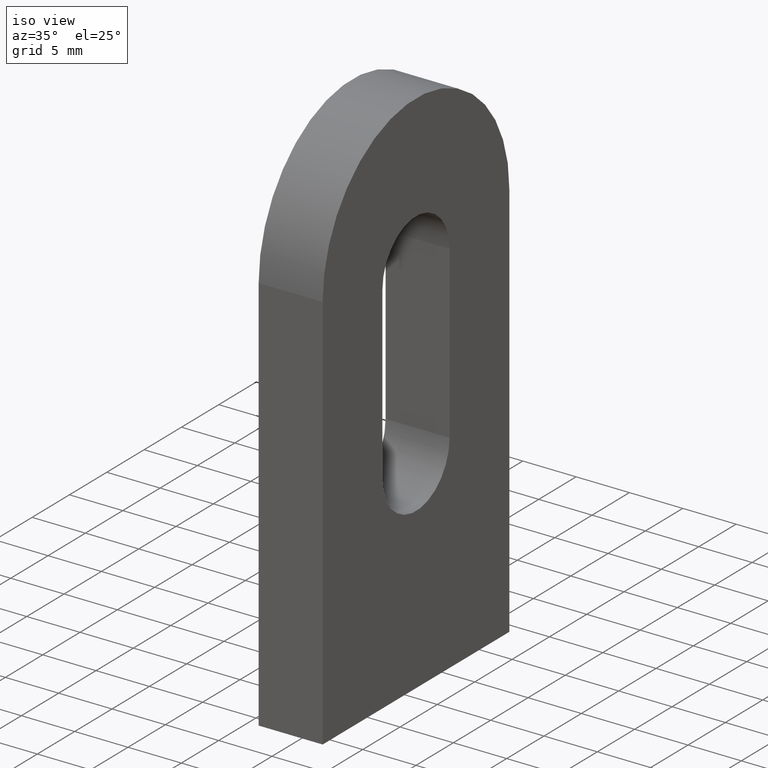
[diagram: clean part render]
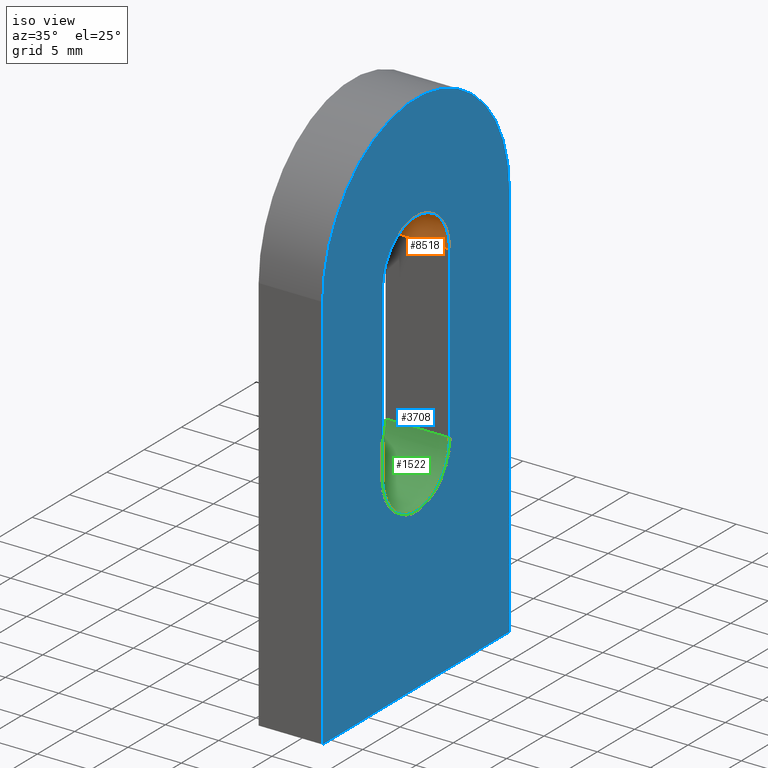
[diagram: same view with three faces highlighted in distinct colors, each labeled with its STEP entity id]
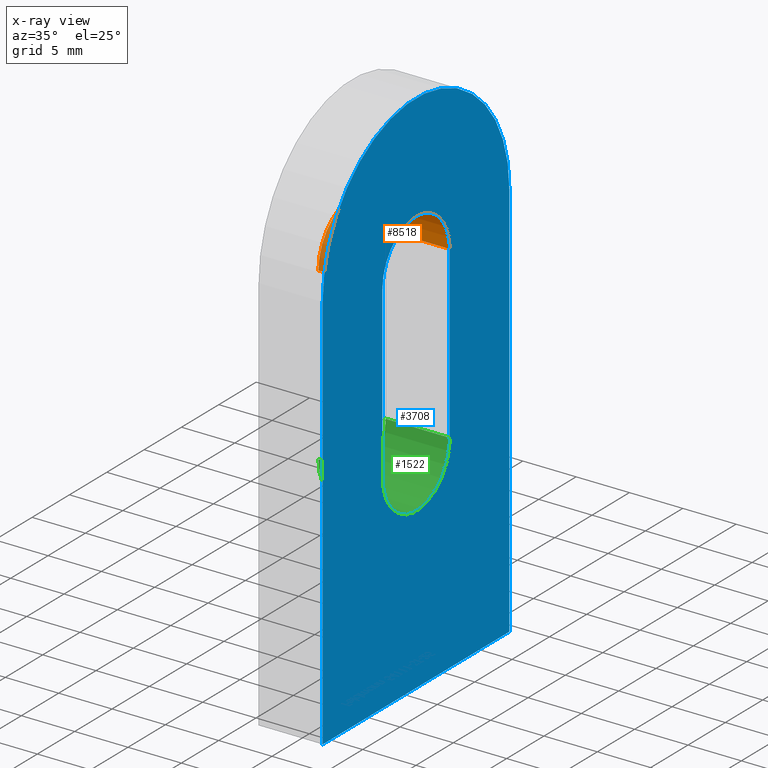
[diagram: x-ray of the same camera — body ghosted, the three highlighted faces saturated]
A machine part, iso view with three faces highlighted in distinct colors.
The next image is the same camera in x-ray (body ghosted, the three faces saturated) — at least one of them is partly hidden behind the body in this view.
Their STEP definitions:

[orange] entity #8518 — the highlighted cylindrical surface (partial cylindrical patch) has radius 4.5 mm, axis along (1, -0, -0).
#16 = ORIENTED_EDGE ( 'NONE', *, *, #8399, .T. ) ;
#138 = VECTOR ( 'NONE', #3135, 1000.000000000000000 ) ;
#873 = CIRCLE ( 'NONE', #11411, 4.500000000000003553 ) ;
#1054 = CARTESIAN_POINT ( 'NONE',  ( 3.000000000000000000, 4.500000000000002665, 35.50000000000000000 ) ) ;
#1369 = ORIENTED_EDGE ( 'NONE', *, *, #11287, .F. ) ;
#1378 = CARTESIAN_POINT ( 'NONE',  ( -3.000000000000000000, -4.500000000000002665, 35.50000000000000000 ) ) ;
#1459 = ORIENTED_EDGE ( 'NONE', *, *, #8643, .F. ) ;
#1526 = VECTOR ( 'NONE', #6486, 1000.000000000000000 ) ;
#1928 = CARTESIAN_POINT ( 'NONE',  ( -3.000000000000000000, -4.500000000000002665, 35.50000000000000000 ) ) ;
#2018 = CARTESIAN_POINT ( 'NONE',  ( 3.000000000000000000, -4.500000000000002665, 35.50000000000000000 ) ) ;
#2147 = AXIS2_PLACEMENT_3D ( 'NONE', #8392, #7545, #11240 ) ;
#2381 = LINE ( 'NONE', #7337, #1526 ) ;
#2628 = CARTESIAN_POINT ( 'NONE',  ( -3.000000000000000000, 4.500000000000002665, 35.50000000000000000 ) ) ;
#2711 = VERTEX_POINT ( 'NONE', #2628 ) ;
#3135 = DIRECTION ( 'NONE',  ( 1.000000000000000000, -0.000000000000000000, -0.000000000000000000 ) ) ;
#3961 = ORIENTED_EDGE ( 'NONE', *, *, #10543, .T. ) ;
#4423 = CARTESIAN_POINT ( 'NONE',  ( -3.000000000000000000, -1.776356839400250070E-15, 35.50000000000000000 ) ) ;
#5454 = CIRCLE ( 'NONE', #2147, 4.500000000000003553 ) ;
#6486 = DIRECTION ( 'NONE',  ( 1.000000000000000000, -0.000000000000000000, -0.000000000000000000 ) ) ;
#7337 = CARTESIAN_POINT ( 'NONE',  ( -3.000000000000000000, 4.500000000000002665, 35.50000000000000000 ) ) ;
#7494 = CARTESIAN_POINT ( 'NONE',  ( -3.000000000000000000, -1.776356839400250070E-15, 35.50000000000000000 ) ) ;
#7545 = DIRECTION ( 'NONE',  ( 1.000000000000000000, 0.000000000000000000, 0.000000000000000000 ) ) ;
#7874 = EDGE_LOOP ( 'NONE', ( #3961, #1459, #1369, #16 ) ) ;
#8392 = CARTESIAN_POINT ( 'NONE',  ( 3.000000000000000000, -1.776356839400250070E-15, 35.50000000000000000 ) ) ;
#8395 = DIRECTION ( 'NONE',  ( 0.000000000000000000, 0.000000000000000000, -1.000000000000000000 ) ) ;
#8399 = EDGE_CURVE ( 'NONE', #2711, #8398, #2381, .T. ) ;
#8398 = VERTEX_POINT ( 'NONE', #1054 ) ;
#8512 = VERTEX_POINT ( 'NONE', #2018 ) ;
#8518 = ADVANCED_FACE ( 'NONE', ( #9525 ), #11226, .F. ) ;
#8643 = EDGE_CURVE ( 'NONE', #9087, #8512, #9251, .T. ) ;
#9087 = VERTEX_POINT ( 'NONE', #1928 ) ;
#9251 = LINE ( 'NONE', #1378, #138 ) ;
#9525 = FACE_OUTER_BOUND ( 'NONE', #7874, .T. ) ;
#9779 = DIRECTION ( 'NONE',  ( 1.000000000000000000, 0.000000000000000000, 0.000000000000000000 ) ) ;
#10543 = EDGE_CURVE ( 'NONE', #8398, #8512, #5454, .T. ) ;
#10753 = DIRECTION ( 'NONE',  ( 0.000000000000000000, 0.000000000000000000, -1.000000000000000000 ) ) ;
#10997 = DIRECTION ( 'NONE',  ( 1.000000000000000000, -0.000000000000000000, -0.000000000000000000 ) ) ;
#11226 = CYLINDRICAL_SURFACE ( 'NONE', #11251, 4.500000000000003553 ) ;
#11240 = DIRECTION ( 'NONE',  ( 0.000000000000000000, 0.000000000000000000, -1.000000000000000000 ) ) ;
#11251 = AXIS2_PLACEMENT_3D ( 'NONE', #7494, #10997, #8395 ) ;
#11287 = EDGE_CURVE ( 'NONE', #2711, #9087, #873, .T. ) ;
#11411 = AXIS2_PLACEMENT_3D ( 'NONE', #4423, #9779, #10753 ) ;

[blue] entity #3708 — the highlighted planar face has unit normal (-1, -0, 0).
#506 = CARTESIAN_POINT ( 'NONE',  ( 3.000000000000000000, 0.000000000000000000, 37.50000000000000000 ) ) ;
#594 = LINE ( 'NONE', #7481, #8027 ) ;
#668 = CARTESIAN_POINT ( 'NONE',  ( 3.000000000000000000, -12.50000000000000000, -3.367778697655221307E-15 ) ) ;
#1054 = CARTESIAN_POINT ( 'NONE',  ( 3.000000000000000000, 4.500000000000002665, 35.50000000000000000 ) ) ;
#1257 = CARTESIAN_POINT ( 'NONE',  ( 3.000000000000000000, 12.50000000000000000, -3.367778697655221307E-15 ) ) ;
#1300 = AXIS2_PLACEMENT_3D ( 'NONE', #9878, #4507, #9914 ) ;
#1805 = ORIENTED_EDGE ( 'NONE', *, *, #1889, .F. ) ;
#1889 = EDGE_CURVE ( 'NONE', #9092, #6148, #10325, .T. ) ;
#1969 = CIRCLE ( 'NONE', #8506, 4.500000000000002665 ) ;
#2018 = CARTESIAN_POINT ( 'NONE',  ( 3.000000000000000000, -4.500000000000002665, 35.50000000000000000 ) ) ;
#2147 = AXIS2_PLACEMENT_3D ( 'NONE', #8392, #7545, #11240 ) ;
#2187 = EDGE_CURVE ( 'NONE', #6148, #8131, #10466, .T. ) ;
#2215 = ORIENTED_EDGE ( 'NONE', *, *, #10543, .F. ) ;
#2261 = CARTESIAN_POINT ( 'NONE',  ( 3.000000000000000000, 12.50000000000000178, 37.50000000000000000 ) ) ;
#2604 = ORIENTED_EDGE ( 'NONE', *, *, #7040, .F. ) ;
#2831 = VECTOR ( 'NONE', #10103, 1000.000000000000000 ) ;
#3533 = LINE ( 'NONE', #1257, #2831 ) ;
#3617 = PLANE ( 'NONE',  #1300 ) ;
#3708 = ADVANCED_FACE ( 'NONE', ( #9577, #10005 ), #3617, .F. ) ;
#3719 = CARTESIAN_POINT ( 'NONE',  ( 3.000000000000000000, -4.500000000000001776, 19.49999999999999645 ) ) ;
#3771 = DIRECTION ( 'NONE',  ( 0.000000000000000000, -4.625929269271485791E-17, -1.000000000000000000 ) ) ;
#3882 = CARTESIAN_POINT ( 'NONE',  ( 3.000000000000000000, 4.500000000000004441, 19.49999999999999645 ) ) ;
#4186 = ORIENTED_EDGE ( 'NONE', *, *, #11205, .F. ) ;
#4320 = DIRECTION ( 'NONE',  ( 0.000000000000000000, -4.625929269271485791E-17, 1.000000000000000000 ) ) ;
#4403 = VERTEX_POINT ( 'NONE', #3719 ) ;
#4422 = VECTOR ( 'NONE', #4320, 1000.000000000000000 ) ;
#4507 = DIRECTION ( 'NONE',  ( -1.000000000000000000, -0.000000000000000000, 0.000000000000000000 ) ) ;
#4762 = ORIENTED_EDGE ( 'NONE', *, *, #7246, .F. ) ;
#4881 = DIRECTION ( 'NONE',  ( 0.000000000000000000, 1.626303258728256651E-16, -1.000000000000000000 ) ) ;
#4901 = VERTEX_POINT ( 'NONE', #3882 ) ;
#5053 = DIRECTION ( 'NONE',  ( 0.000000000000000000, 0.000000000000000000, 1.000000000000000000 ) ) ;
#5363 = AXIS2_PLACEMENT_3D ( 'NONE', #506, #8616, #5053 ) ;
#5454 = CIRCLE ( 'NONE', #2147, 4.500000000000003553 ) ;
#5496 = EDGE_CURVE ( 'NONE', #4901, #8398, #594, .T. ) ;
#6148 = VERTEX_POINT ( 'NONE', #10172 ) ;
#6358 = CARTESIAN_POINT ( 'NONE',  ( 3.000000000000000000, -4.500000000000002665, 35.50000000000000000 ) ) ;
#6832 = CARTESIAN_POINT ( 'NONE',  ( 3.000000000000000000, 7.966394000823684906E-16, 19.49999999999999645 ) ) ;
#7040 = EDGE_CURVE ( 'NONE', #7567, #9092, #3533, .T. ) ;
#7127 = EDGE_LOOP ( 'NONE', ( #4762, #2215, #10181, #7195 ) ) ;
#7195 = ORIENTED_EDGE ( 'NONE', *, *, #7399, .F. ) ;
#7242 = CARTESIAN_POINT ( 'NONE',  ( 3.000000000000000000, 12.50000000000000000, -3.367778697655221307E-15 ) ) ;
#7246 = EDGE_CURVE ( 'NONE', #8512, #4403, #9261, .T. ) ;
#7293 = LINE ( 'NONE', #9127, #10955 ) ;
#7399 = EDGE_CURVE ( 'NONE', #4403, #4901, #1969, .T. ) ;
#7481 = CARTESIAN_POINT ( 'NONE',  ( 3.000000000000000000, 4.500000000000002665, 35.50000000000000000 ) ) ;
#7545 = DIRECTION ( 'NONE',  ( 1.000000000000000000, 0.000000000000000000, 0.000000000000000000 ) ) ;
#7567 = VERTEX_POINT ( 'NONE', #7242 ) ;
#8027 = VECTOR ( 'NONE', #11167, 1000.000000000000000 ) ;
#8131 = VERTEX_POINT ( 'NONE', #2261 ) ;
#8392 = CARTESIAN_POINT ( 'NONE',  ( 3.000000000000000000, -1.776356839400250070E-15, 35.50000000000000000 ) ) ;
#8398 = VERTEX_POINT ( 'NONE', #1054 ) ;
#8506 = AXIS2_PLACEMENT_3D ( 'NONE', #6832, #9459, #10388 ) ;
#8512 = VERTEX_POINT ( 'NONE', #2018 ) ;
#8616 = DIRECTION ( 'NONE',  ( -1.000000000000000000, -0.000000000000000000, 0.000000000000000000 ) ) ;
#9000 = EDGE_LOOP ( 'NONE', ( #11158, #1805, #2604, #4186 ) ) ;
#9092 = VERTEX_POINT ( 'NONE', #9934 ) ;
#9127 = CARTESIAN_POINT ( 'NONE',  ( 3.000000000000000000, 12.50000000000000178, 37.50000000000000000 ) ) ;
#9261 = LINE ( 'NONE', #6358, #9975 ) ;
#9459 = DIRECTION ( 'NONE',  ( 1.000000000000000000, 0.000000000000000000, 0.000000000000000000 ) ) ;
#9577 = FACE_BOUND ( 'NONE', #7127, .T. ) ;
#9878 = CARTESIAN_POINT ( 'NONE',  ( 3.000000000000000000, 0.000000000000000000, 37.50000000000000000 ) ) ;
#9914 = DIRECTION ( 'NONE',  ( 0.000000000000000000, 0.000000000000000000, 1.000000000000000000 ) ) ;
#9934 = CARTESIAN_POINT ( 'NONE',  ( 3.000000000000000000, -12.50000000000000000, -3.367778697655221307E-15 ) ) ;
#9975 = VECTOR ( 'NONE', #4881, 1000.000000000000000 ) ;
#10005 = FACE_OUTER_BOUND ( 'NONE', #9000, .T. ) ;
#10103 = DIRECTION ( 'NONE',  ( 0.000000000000000000, -1.000000000000000000, 0.000000000000000000 ) ) ;
#10172 = CARTESIAN_POINT ( 'NONE',  ( 3.000000000000000000, -12.50000000000000178, 37.50000000000000000 ) ) ;
#10181 = ORIENTED_EDGE ( 'NONE', *, *, #5496, .F. ) ;
#10325 = LINE ( 'NONE', #668, #4422 ) ;
#10388 = DIRECTION ( 'NONE',  ( 0.000000000000000000, 0.000000000000000000, -1.000000000000000000 ) ) ;
#10466 = CIRCLE ( 'NONE', #5363, 12.50000000000000355 ) ;
#10543 = EDGE_CURVE ( 'NONE', #8398, #8512, #5454, .T. ) ;
#10955 = VECTOR ( 'NONE', #3771, 1000.000000000000000 ) ;
#11158 = ORIENTED_EDGE ( 'NONE', *, *, #2187, .F. ) ;
#11167 = DIRECTION ( 'NONE',  ( -0.000000000000000000, -1.626303258728256651E-16, 1.000000000000000000 ) ) ;
#11205 = EDGE_CURVE ( 'NONE', #8131, #7567, #7293, .T. ) ;
#11240 = DIRECTION ( 'NONE',  ( 0.000000000000000000, 0.000000000000000000, -1.000000000000000000 ) ) ;

[green] entity #1522 — the highlighted cylindrical surface (partial cylindrical patch) has radius 4.5 mm, axis along (1, -0, -0).
#17 = EDGE_CURVE ( 'NONE', #4176, #4901, #511, .T. ) ;
#248 = EDGE_LOOP ( 'NONE', ( #10664, #1651, #5072, #2127 ) ) ;
#457 = CARTESIAN_POINT ( 'NONE',  ( -3.000000000000000000, 4.500000000000004441, 19.49999999999999645 ) ) ;
#511 = LINE ( 'NONE', #1938, #6149 ) ;
#1522 = ADVANCED_FACE ( 'NONE', ( #9325 ), #11455, .F. ) ;
#1651 = ORIENTED_EDGE ( 'NONE', *, *, #17, .F. ) ;
#1938 = CARTESIAN_POINT ( 'NONE',  ( -3.000000000000000000, 4.500000000000004441, 19.49999999999999645 ) ) ;
#1969 = CIRCLE ( 'NONE', #8506, 4.500000000000002665 ) ;
#1989 = CARTESIAN_POINT ( 'NONE',  ( -3.000000000000000000, 7.966394000823684906E-16, 19.49999999999999645 ) ) ;
#2127 = ORIENTED_EDGE ( 'NONE', *, *, #8049, .T. ) ;
#2911 = DIRECTION ( 'NONE',  ( 1.000000000000000000, -0.000000000000000000, -0.000000000000000000 ) ) ;
#3044 = CARTESIAN_POINT ( 'NONE',  ( -3.000000000000000000, 7.966394000823684906E-16, 19.49999999999999645 ) ) ;
#3562 = AXIS2_PLACEMENT_3D ( 'NONE', #3044, #3662, #8841 ) ;
#3662 = DIRECTION ( 'NONE',  ( 1.000000000000000000, 0.000000000000000000, 0.000000000000000000 ) ) ;
#3719 = CARTESIAN_POINT ( 'NONE',  ( 3.000000000000000000, -4.500000000000001776, 19.49999999999999645 ) ) ;
#3882 = CARTESIAN_POINT ( 'NONE',  ( 3.000000000000000000, 4.500000000000004441, 19.49999999999999645 ) ) ;
#3939 = EDGE_CURVE ( 'NONE', #11358, #4176, #4109, .T. ) ;
#4109 = CIRCLE ( 'NONE', #3562, 4.500000000000002665 ) ;
#4176 = VERTEX_POINT ( 'NONE', #457 ) ;
#4403 = VERTEX_POINT ( 'NONE', #3719 ) ;
#4636 = VECTOR ( 'NONE', #6546, 1000.000000000000000 ) ;
#4901 = VERTEX_POINT ( 'NONE', #3882 ) ;
#5072 = ORIENTED_EDGE ( 'NONE', *, *, #3939, .F. ) ;
#5823 = AXIS2_PLACEMENT_3D ( 'NONE', #1989, #2911, #11040 ) ;
#6149 = VECTOR ( 'NONE', #9198, 1000.000000000000000 ) ;
#6546 = DIRECTION ( 'NONE',  ( 1.000000000000000000, -0.000000000000000000, -0.000000000000000000 ) ) ;
#6832 = CARTESIAN_POINT ( 'NONE',  ( 3.000000000000000000, 7.966394000823684906E-16, 19.49999999999999645 ) ) ;
#7037 = LINE ( 'NONE', #9247, #4636 ) ;
#7399 = EDGE_CURVE ( 'NONE', #4403, #4901, #1969, .T. ) ;
#7984 = CARTESIAN_POINT ( 'NONE',  ( -3.000000000000000000, -4.500000000000000000, 19.49999999999999645 ) ) ;
#8049 = EDGE_CURVE ( 'NONE', #11358, #4403, #7037, .T. ) ;
#8506 = AXIS2_PLACEMENT_3D ( 'NONE', #6832, #9459, #10388 ) ;
#8841 = DIRECTION ( 'NONE',  ( 0.000000000000000000, 0.000000000000000000, -1.000000000000000000 ) ) ;
#9198 = DIRECTION ( 'NONE',  ( 1.000000000000000000, -0.000000000000000000, -0.000000000000000000 ) ) ;
#9247 = CARTESIAN_POINT ( 'NONE',  ( -3.000000000000000000, -4.500000000000001776, 19.49999999999999645 ) ) ;
#9325 = FACE_OUTER_BOUND ( 'NONE', #248, .T. ) ;
#9459 = DIRECTION ( 'NONE',  ( 1.000000000000000000, 0.000000000000000000, 0.000000000000000000 ) ) ;
#10388 = DIRECTION ( 'NONE',  ( 0.000000000000000000, 0.000000000000000000, -1.000000000000000000 ) ) ;
#10664 = ORIENTED_EDGE ( 'NONE', *, *, #7399, .T. ) ;
#11040 = DIRECTION ( 'NONE',  ( 0.000000000000000000, 0.000000000000000000, -1.000000000000000000 ) ) ;
#11358 = VERTEX_POINT ( 'NONE', #7984 ) ;
#11455 = CYLINDRICAL_SURFACE ( 'NONE', #5823, 4.500000000000002665 ) ;